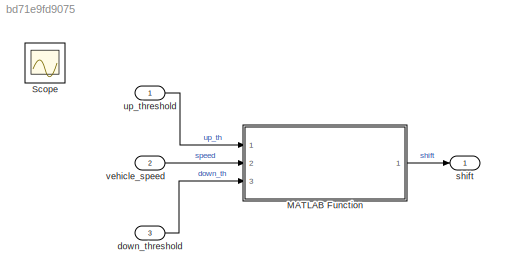
MODEL slx_bd71e9fd9075
KIND model
CONFIG AbsTol = auto
CONFIG EnableMultiTasking = on
CONFIG FixedStep = 0.05
CONFIG MaxStep = auto
CONFIG MinStep = auto
CONFIG PreLoadFcn = load shifter_data;
CONFIG RelTol = 1e-3
CONFIG SampleTimeConstraint = Unconstrained
CONFIG Solver = FixedStepDiscrete
CONFIG SolverName = FixedStepDiscrete
CONFIG StartTime = 0.0
CONFIG StopTime = 30
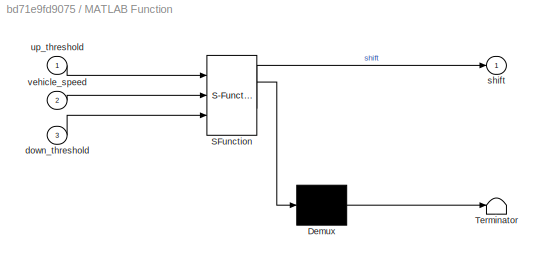
BLOCK [SubSystem] MATLAB Function
  ErrorFcn = Stateflow.Translate.translate
  PermitHierarchicalResolution = ExplicitOnly
  Ports = [3, 1]
  RequestExecContextInheritance = off
  SFBlockType = MATLAB Function
  TreatAsAtomicUnit = on
BLOCK [Demux] MATLAB Function/ Demux 
  Outputs = 1
  Ports = [1, 1]
BLOCK [S-Function] MATLAB Function/ SFunction 
  EnableBusSupport = on
  FunctionName = sf_sfun
  PortCounts = [3 2]
  Ports = [3, 2]
  SFcnIsStateOwnerBlock = off
  SFunctionDeploymentMode = off
  Tag = Stateflow S-Function shifter_matlab 2
BLOCK [Terminator] MATLAB Function/ Terminator 
BLOCK [Inport] MATLAB Function/down_threshold
  IconDisplay = Port number
  Port = 3
BLOCK [Outport] MATLAB Function/shift
  IconDisplay = Port number
BLOCK [Inport] MATLAB Function/up_threshold
  IconDisplay = Port number
BLOCK [Inport] MATLAB Function/vehicle_speed
  IconDisplay = Port number
  Port = 2
BLOCK [Scope] Scope
  Floating = off
  IOType = viewer
  NumInputPorts = 1
  Ports = []
  ScopeSpecificationString = Simulink.scopes.TimeScopeBlockCfg('CurrentConfiguration', extmgr.ConfigurationSet(extmgr.Configuration('Core','General UI',true),extmgr.Configuration('Core','Source UI',true),extmgr.Configuration('Sources','WiredSimulink',true,'DataLoggingMaxPoints','7500','DataLoggingLimitDataPoints',true,'DataLoggingSaveFormat','Array','DataLoggingDecimation','1','DataLoggingDecimateData',true),extmgr.Configurat...<+3145ch>
BLOCK [Inport] down_threshold
  IconDisplay = Port number
  OutDataTypeStr = double
  Port = 3
BLOCK [Outport] shift
  IconDisplay = Port number
BLOCK [Inport] up_threshold
  IconDisplay = Port number
  OutDataTypeStr = double
BLOCK [Inport] vehicle_speed
  IconDisplay = Port number
  OutDataTypeStr = double
  Port = 2
LINE MATLAB Function:1 -> shift:1
LINE down_threshold:1 -> MATLAB Function:3
LINE up_threshold:1 -> MATLAB Function:1
LINE vehicle_speed:1 -> MATLAB Function:2
CHART MATLAB Function states=1 transitions=1
  STATE_LABEL 'eML_blk_kernel()'
  STATE_LABEL 'SCRIPT:\nfunction shift = fcn(up_threshold, vehicle_speed, down_threshold)\n%#codegen\n\nif (vehicle_speed > up_threshold)\n    shift = 1;\nelseif (vehicle_speed < down_threshold)\n    shift = -1;\nelse\n    shift = 0;\nend'
